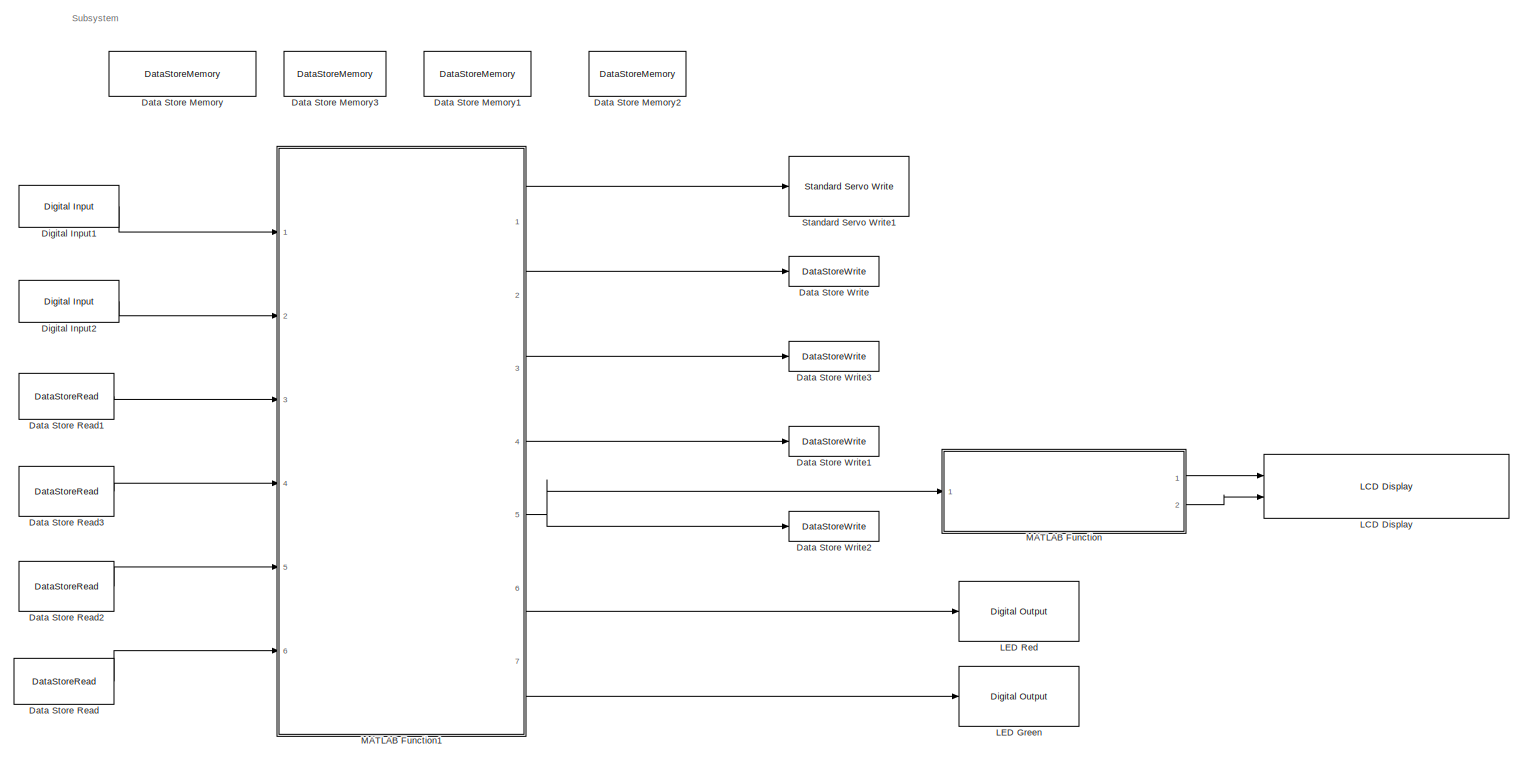
[diagram: root canvas - part 1/1, most of the canvas]
MODEL slx_0cc40393141c
KIND model
CONFIG AbsTol = auto
CONFIG EnableMultiTasking = on
CONFIG FixedStep = auto
CONFIG MaxStep = auto
CONFIG MinStep = auto
CONFIG RelTol = 1e-3
CONFIG SampleTimeConstraint = Unconstrained
CONFIG Solver = FixedStepAuto
CONFIG SolverName = FixedStepAuto
CONFIG StartTime = 0.0
CONFIG StopTime = inf
BLOCK [DataStoreMemory] Data Store Memory
  DataStoreName = parking_count
  InitialValue = 3
  ReadBeforeWriteMsg = warning
  ShowAdditionalParam = off
  WriteAfterReadMsg = warning
  WriteAfterWriteMsg = warning
BLOCK [DataStoreMemory] Data Store Memory1
  DataStoreName = Enter_flag
  ReadBeforeWriteMsg = warning
  ShowAdditionalParam = off
  WriteAfterReadMsg = warning
  WriteAfterWriteMsg = warning
BLOCK [DataStoreMemory] Data Store Memory2
  DataStoreName = delay
  InitialValue = 2
  ReadBeforeWriteMsg = warning
  ShowAdditionalParam = off
  WriteAfterReadMsg = warning
  WriteAfterWriteMsg = warning
BLOCK [DataStoreMemory] Data Store Memory3
  DataStoreName = Exit_flag
  ReadBeforeWriteMsg = warning
  ShowAdditionalParam = off
  WriteAfterReadMsg = warning
  WriteAfterWriteMsg = warning
BLOCK [DataStoreRead] Data Store Read
  DataStoreName = parking_count
  Ports = [0, 1]
BLOCK [DataStoreRead] Data Store Read1
  DataStoreName = Enter_flag
  Ports = [0, 1]
BLOCK [DataStoreRead] Data Store Read2
  DataStoreName = delay
  Ports = [0, 1]
BLOCK [DataStoreRead] Data Store Read3
  DataStoreName = Exit_flag
  Ports = [0, 1]
BLOCK [DataStoreWrite] Data Store Write
  DataStoreName = Enter_flag
  Ports = [1]
BLOCK [DataStoreWrite] Data Store Write1
  DataStoreName = delay
  Ports = [1]
BLOCK [DataStoreWrite] Data Store Write2
  DataStoreName = parking_count
  Ports = [1]
BLOCK [DataStoreWrite] Data Store Write3
  DataStoreName = Exit_flag
  Ports = [1]
BLOCK [Reference] Digital Input1  REF=arduinolib/Digital Input
  Ports = [0, 1]
  SourceBlock = arduinolib/Digital Input
  SourceProductBaseCode = ARDUINO
  SourceProductName = Simulink Support Package for Arduino Hardware
  SourceType = Arduino Digital Input
BLOCK [Reference] Digital Input2  REF=arduinolib/Digital Input
  Ports = [0, 1]
  SourceBlock = arduinolib/Digital Input
  SourceProductBaseCode = ARDUINO
  SourceProductName = Simulink Support Package for Arduino Hardware
  SourceType = Arduino Digital Input
BLOCK [Reference] LCD Display  REF=LCDlib/LCD Display
  Ports = [2]
  SourceBlock = LCDlib/LCD Display
  SourceProductName = LCD Library
  SourceType = LiquidCrystalDisplay.block.LCD
BLOCK [Reference] LED Green  REF=arduinolib/Digital Output
  Ports = [1]
  SourceBlock = arduinolib/Digital Output
  SourceProductBaseCode = ARDUINO
  SourceProductName = Simulink Support Package for Arduino Hardware
  SourceType = Arduino Digital Output
BLOCK [Reference] LED Red   REF=arduinolib/Digital Output
  Ports = [1]
  SourceBlock = arduinolib/Digital Output
  SourceProductBaseCode = ARDUINO
  SourceProductName = Simulink Support Package for Arduino Hardware
  SourceType = Arduino Digital Output
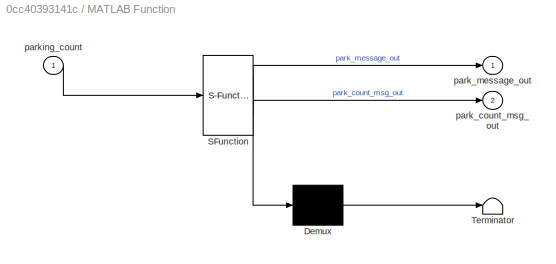
BLOCK [SubSystem] MATLAB Function
  ErrorFcn = Stateflow.Translate.translate
  PermitHierarchicalResolution = ExplicitOnly
  Ports = [1, 2]
  RequestExecContextInheritance = off
  SFBlockType = MATLAB Function
  TreatAsAtomicUnit = on
BLOCK [Demux] MATLAB Function/ Demux 
  Outputs = 1
  Ports = [1, 1]
BLOCK [S-Function] MATLAB Function/ SFunction 
  EnableBusSupport = on
  FunctionName = sf_sfun
  PortCounts = [1 3]
  Ports = [1, 3]
  SFcnIsStateOwnerBlock = off
  SFunctionDeploymentMode = off
  Tag = Stateflow S-Function smart_parking_v1 2
BLOCK [Terminator] MATLAB Function/ Terminator 
BLOCK [Outport] MATLAB Function/park_count_msg_out
  IconDisplay = Port number
  Port = 2
BLOCK [Outport] MATLAB Function/park_message_out
  IconDisplay = Port number
BLOCK [Inport] MATLAB Function/parking_count
  IconDisplay = Port number
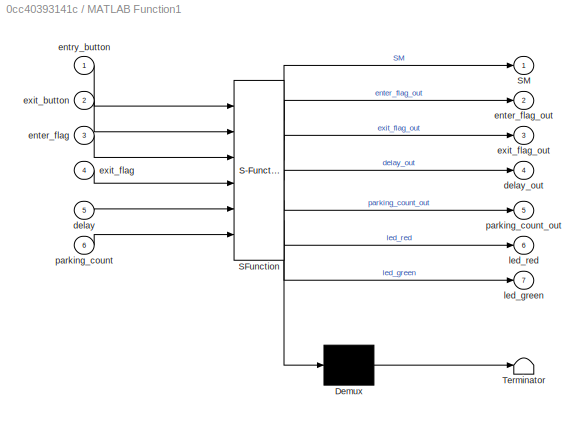
BLOCK [SubSystem] MATLAB Function1
  ErrorFcn = Stateflow.Translate.translate
  PermitHierarchicalResolution = ExplicitOnly
  Ports = [6, 7]
  RequestExecContextInheritance = off
  SFBlockType = MATLAB Function
  TreatAsAtomicUnit = on
BLOCK [Demux] MATLAB Function1/ Demux 
  Outputs = 1
  Ports = [1, 1]
BLOCK [S-Function] MATLAB Function1/ SFunction 
  EnableBusSupport = on
  FunctionName = sf_sfun
  PortCounts = [6 8]
  Ports = [6, 8]
  SFcnIsStateOwnerBlock = off
  SFunctionDeploymentMode = off
  Tag = Stateflow S-Function smart_parking_v1 1
BLOCK [Terminator] MATLAB Function1/ Terminator 
BLOCK [Outport] MATLAB Function1/SM
  IconDisplay = Port number
BLOCK [Inport] MATLAB Function1/delay
  IconDisplay = Port number
  Port = 5
BLOCK [Outport] MATLAB Function1/delay_out
  IconDisplay = Port number
  Port = 4
BLOCK [Inport] MATLAB Function1/enter_flag
  IconDisplay = Port number
  Port = 3
BLOCK [Outport] MATLAB Function1/enter_flag_out
  IconDisplay = Port number
  Port = 2
BLOCK [Inport] MATLAB Function1/entry_button
  IconDisplay = Port number
BLOCK [Inport] MATLAB Function1/exit_button
  IconDisplay = Port number
  Port = 2
BLOCK [Inport] MATLAB Function1/exit_flag
  IconDisplay = Port number
  Port = 4
BLOCK [Outport] MATLAB Function1/exit_flag_out
  IconDisplay = Port number
  Port = 3
BLOCK [Outport] MATLAB Function1/led_green
  IconDisplay = Port number
  Port = 7
BLOCK [Outport] MATLAB Function1/led_red
  IconDisplay = Port number
  Port = 6
BLOCK [Inport] MATLAB Function1/parking_count
  IconDisplay = Port number
  Port = 6
BLOCK [Outport] MATLAB Function1/parking_count_out
  IconDisplay = Port number
  Port = 5
BLOCK [Reference] Standard Servo Write1  REF=arduinolib/Standard Servo Write
  Ports = [1]
  SourceBlock = arduinolib/Standard Servo Write
  SourceProductBaseCode = ARDUINO
  SourceProductName = Simulink Support Package for Arduino Hardware
  SourceType = Arduino Standard Servo Write
ANNOTATION (root): Subsystem
LINE Data Store Read1:1 -> MATLAB Function1:3
LINE Data Store Read2:1 -> MATLAB Function1:5
LINE Data Store Read3:1 -> MATLAB Function1:4
LINE Data Store Read:1 -> MATLAB Function1:6
LINE Digital Input1:1 -> MATLAB Function1:1
LINE Digital Input2:1 -> MATLAB Function1:2
LINE MATLAB Function1:1 -> Standard Servo Write1:1
LINE MATLAB Function1:2 -> Data Store Write:1
LINE MATLAB Function1:3 -> Data Store Write3:1
LINE MATLAB Function1:4 -> Data Store Write1:1
NET MATLAB Function1:5 -> Data Store Write2:1, MATLAB Function:1
LINE MATLAB Function1:6 -> LED Red :1
LINE MATLAB Function1:7 -> LED Green:1
LINE MATLAB Function:1 -> LCD Display:1
LINE MATLAB Function:2 -> LCD Display:2
note: NET lines group one-source signal fan-out (src -> all destinations, sorted); 1:1 wires keep LINE
CHART MATLAB Function1 states=1 transitions=1
  STATE_LABEL 'eML_blk_kernel()'
  STATE_LABEL 'SCRIPT:\nfunction [SM,enter_flag_out,exit_flag_out,delay_out,parking_count_out,led_red,led_green] = fcn(entry_button,exit_button,enter_flag,exit_flag,delay, parking_count)\nif entry_button \n    enter_flag_out=1;\n    exit_flag_out=0;\nelseif exit_button\n    exit_flag_out=1;\n    enter_flag_out=0;\nelse\n    enter_flag_out=enter_flag;\n    exit_flag_out=exit_flag;\nend\nif enter_flag || enter_flag_out\n    if...<+1511ch>'
CHART MATLAB Function states=1 transitions=1
  STATE_LABEL 'eML_blk_kernel()'
  STATE_LABEL 'SCRIPT:\nfunction [park_message_out,park_count_msg_out] = fcn(parking_count)\nif parking_count > 0\n    park_message_out = [[87],[69],[76],[67],[79],[77],[69],[33],[33],[33],[32],[32],[32],[32]];  \n else\n    park_message_out  = [[80],[76],[90],[32],[67],[79],[77],[69],[32],[76],[65],[84],[69],[82]];\n end\nswitch parking_count\n        case 0\n            park_count_msg_out=[[78],[111],[32],[111],[102],[...<+1831ch>'
